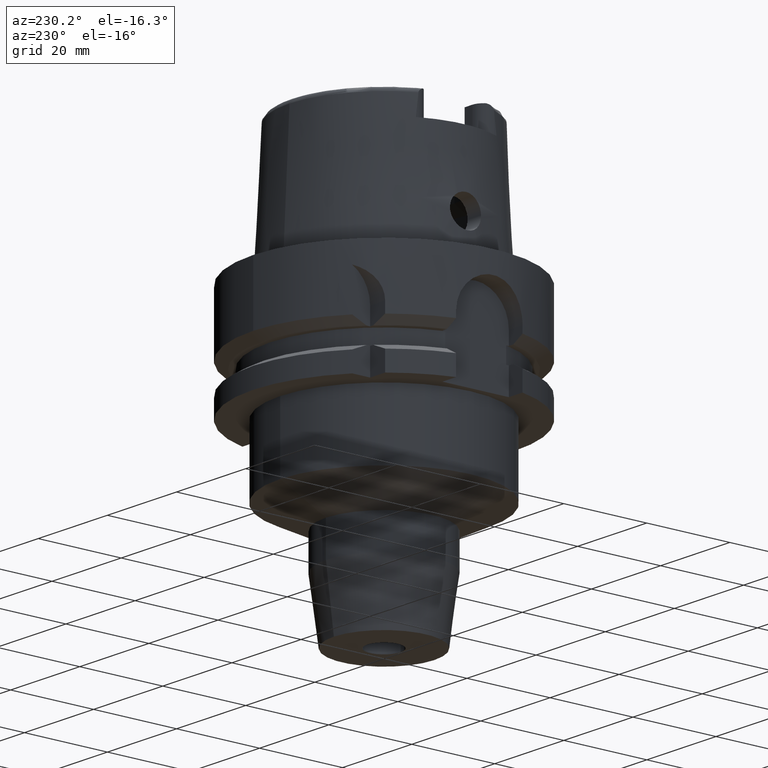
[diagram: clean part render]
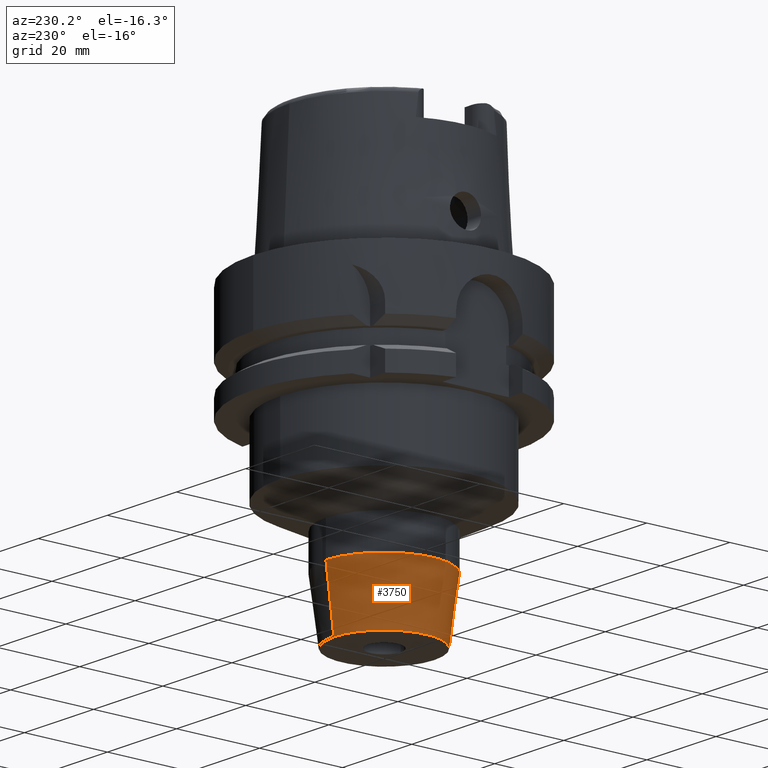
[diagram: same view with one face highlighted and labeled with its STEP entity id]
A machine part, auxiliary view. The second image highlights one B-rep face of the part: STEP entity #3750.
In plain terms, the highlighted conical surface has half-angle 7.5 deg.
Its self-contained STEP definition (entity closure, byte-faithful):
#1715=DIRECTION('',(0.E0,-1.305261922200E-1,-9.914448613738E-1));
#1716=VECTOR('',#1715,1.458711058383E1);
#1717=CARTESIAN_POINT('',(0.E0,1.4E1,-5.553768416937E1));
#1718=LINE('',#1717,#1716);
#1730=CARTESIAN_POINT('',(0.E0,0.E0,-5.553768416937E1));
#1731=DIRECTION('',(0.E0,0.E0,1.E0));
#1732=DIRECTION('',(0.E0,1.E0,0.E0));
#1733=AXIS2_PLACEMENT_3D('',#1730,#1731,#1732);
#1738=DIRECTION('',(0.E0,1.305261922200E-1,-9.914448613738E-1));
#1739=VECTOR('',#1738,1.458711058383E1);
#1740=CARTESIAN_POINT('',(0.E0,-1.4E1,-5.553768416937E1));
#1741=LINE('',#1740,#1739);
#1753=CARTESIAN_POINT('',(0.E0,0.E0,-7.E1));
#1754=DIRECTION('',(0.E0,0.E0,1.E0));
#1755=DIRECTION('',(0.E0,1.E0,0.E0));
#1756=AXIS2_PLACEMENT_3D('',#1753,#1754,#1755);
#2416=CARTESIAN_POINT('',(0.E0,-1.2096E1,-7.E1));
#2417=CARTESIAN_POINT('',(0.E0,1.2096E1,-7.E1));
#2418=VERTEX_POINT('',#2416);
#2419=VERTEX_POINT('',#2417);
#2420=CARTESIAN_POINT('',(0.E0,1.4E1,-5.553768416937E1));
#2421=VERTEX_POINT('',#2420);
#2422=CARTESIAN_POINT('',(0.E0,-1.4E1,-5.553768416937E1));
#2423=VERTEX_POINT('',#2422);
#3738=CARTESIAN_POINT('',(0.E0,0.E0,-6.276884208469E1));
#3739=DIRECTION('',(0.E0,0.E0,1.E0));
#3740=DIRECTION('',(0.E0,1.E0,0.E0));
#3741=AXIS2_PLACEMENT_3D('',#3738,#3739,#3740);
#3742=CONICAL_SURFACE('',#3741,1.3048E1,7.5E0);
#3743=ORIENTED_EDGE('',*,*,#3728,.F.);
#3744=ORIENTED_EDGE('',*,*,#3705,.T.);
#3745=ORIENTED_EDGE('',*,*,#3732,.T.);
#3747=ORIENTED_EDGE('',*,*,#3746,.F.);
#3748=EDGE_LOOP('',(#3743,#3744,#3745,#3747));
#3749=FACE_OUTER_BOUND('',#3748,.F.);
#1734=CIRCLE('',#1733,1.4E1);
#1757=CIRCLE('',#1756,1.2096E1);
#3705=EDGE_CURVE('',#2421,#2423,#1734,.T.);
#3728=EDGE_CURVE('',#2421,#2419,#1718,.T.);
#3732=EDGE_CURVE('',#2423,#2418,#1741,.T.);
#3746=EDGE_CURVE('',#2419,#2418,#1757,.T.);
#3750=ADVANCED_FACE('',(#3749),#3742,.T.);